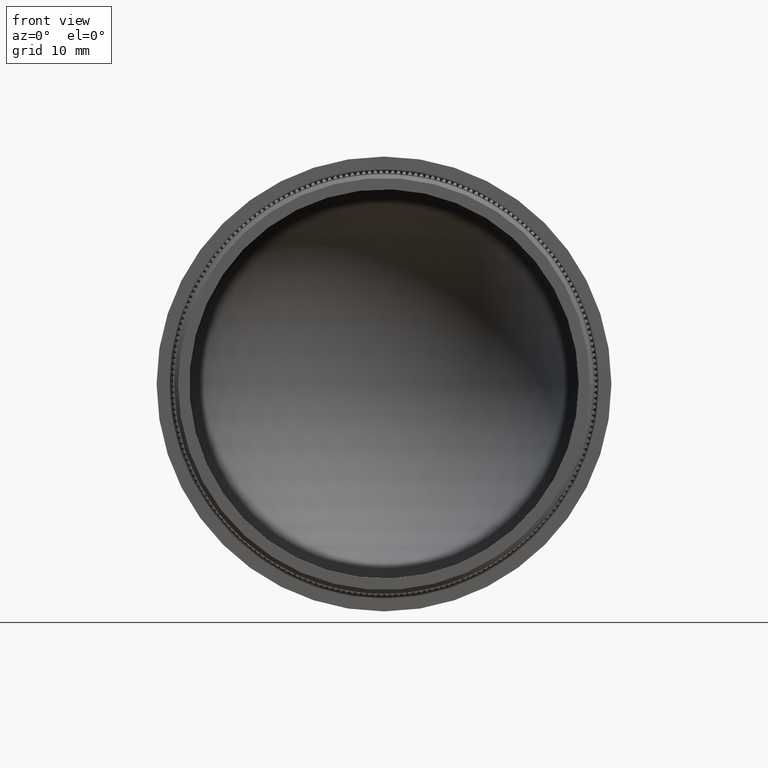
[diagram: clean part render]
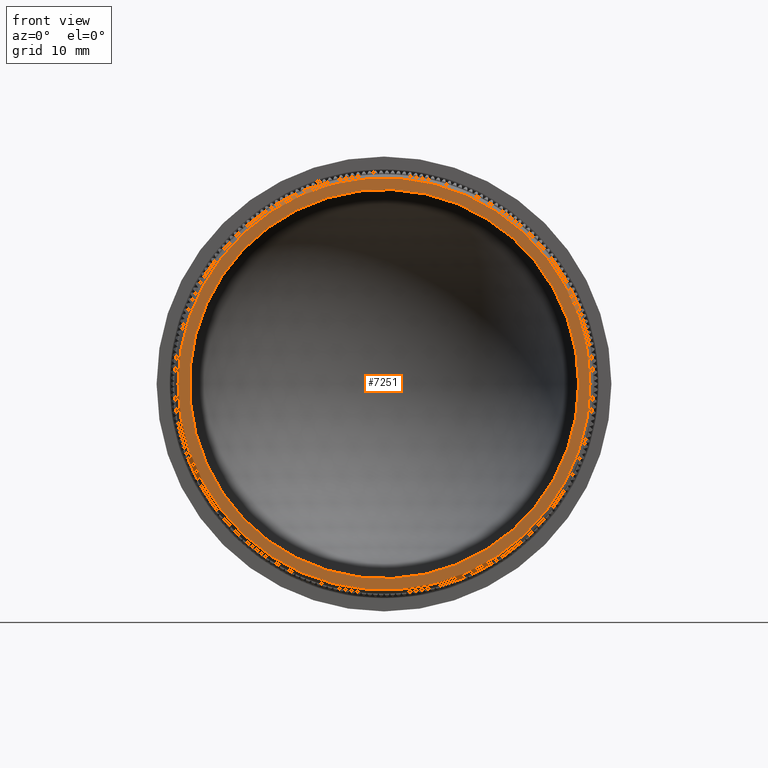
[diagram: same view with one face highlighted and labeled with its STEP entity id]
A machine part, front view. The second image highlights one B-rep face of the part: STEP entity #7251.
In plain terms, the highlighted planar face has unit normal (-0, -1, 0).
Its self-contained STEP definition (entity closure, byte-faithful):
#836 = CARTESIAN_POINT ( 'NONE',  ( 27.80000000000000071, -8.834955698817198405E-16, 0.000000000000000000 ) ) ;
#3939 = DIRECTION ( 'NONE',  ( -1.345799736559849324E-15, -1.000000000000000000, -0.000000000000000000 ) ) ;
#4406 = EDGE_LOOP ( 'NONE', ( #45331 ) ) ;
#7251 = ADVANCED_FACE ( 'NONE', ( #34364, #40538 ), #43491, .T. ) ;
#8411 = CARTESIAN_POINT ( 'NONE',  ( -5.712919881696554330E-14, 3.469446951953614189E-14, 0.000000000000000000 ) ) ;
#8532 = CARTESIAN_POINT ( 'NONE',  ( -5.712919881696554330E-14, 3.652973710648216154E-14, 0.000000000000000000 ) ) ;
#12482 = DIRECTION ( 'NONE',  ( 1.000000000000000000, -1.345799736559849127E-15, 0.000000000000000000 ) ) ;
#13691 = CARTESIAN_POINT ( 'NONE',  ( 27.30000000000002558, -2.105957016018315647E-16, 0.000000000000000000 ) ) ;
#18313 = VERTEX_POINT ( 'NONE', #36691 ) ;
#22726 = EDGE_CURVE ( 'NONE', #18313, #18313, #26308, .T. ) ;
#25722 = CIRCLE ( 'NONE', #41109, 27.30000000000008242 ) ;
#26308 = CIRCLE ( 'NONE', #28297, 25.80000000000005755 ) ;
#28297 = AXIS2_PLACEMENT_3D ( 'NONE', #8411, #3939, #35415 ) ;
#28315 = DIRECTION ( 'NONE',  ( -1.345799736559849324E-15, -1.000000000000000000, -0.000000000000000000 ) ) ;
#30927 = ORIENTED_EDGE ( 'NONE', *, *, #22726, .F. ) ;
#34364 = FACE_OUTER_BOUND ( 'NONE', #4406, .T. ) ;
#35415 = DIRECTION ( 'NONE',  ( 1.000000000000000000, -1.345799736559849324E-15, 0.000000000000000000 ) ) ;
#36691 = CARTESIAN_POINT ( 'NONE',  ( 25.80000000000000426, -2.716368370805198509E-17, 0.000000000000000000 ) ) ;
#36982 = EDGE_CURVE ( 'NONE', #39170, #39170, #25722, .T. ) ;
#39170 = VERTEX_POINT ( 'NONE', #13691 ) ;
#39539 = DIRECTION ( 'NONE',  ( 1.000000000000000000, -1.345799736559849324E-15, 0.000000000000000000 ) ) ;
#40230 = DIRECTION ( 'NONE',  ( -1.345799736559849324E-15, -1.000000000000000000, 0.000000000000000000 ) ) ;
#40279 = AXIS2_PLACEMENT_3D ( 'NONE', #836, #40230, #39539 ) ;
#40538 = FACE_BOUND ( 'NONE', #49929, .T. ) ;
#41109 = AXIS2_PLACEMENT_3D ( 'NONE', #8532, #28315, #12482 ) ;
#43491 = PLANE ( 'NONE',  #40279 ) ;
#45331 = ORIENTED_EDGE ( 'NONE', *, *, #36982, .T. ) ;
#49929 = EDGE_LOOP ( 'NONE', ( #30927 ) ) ;